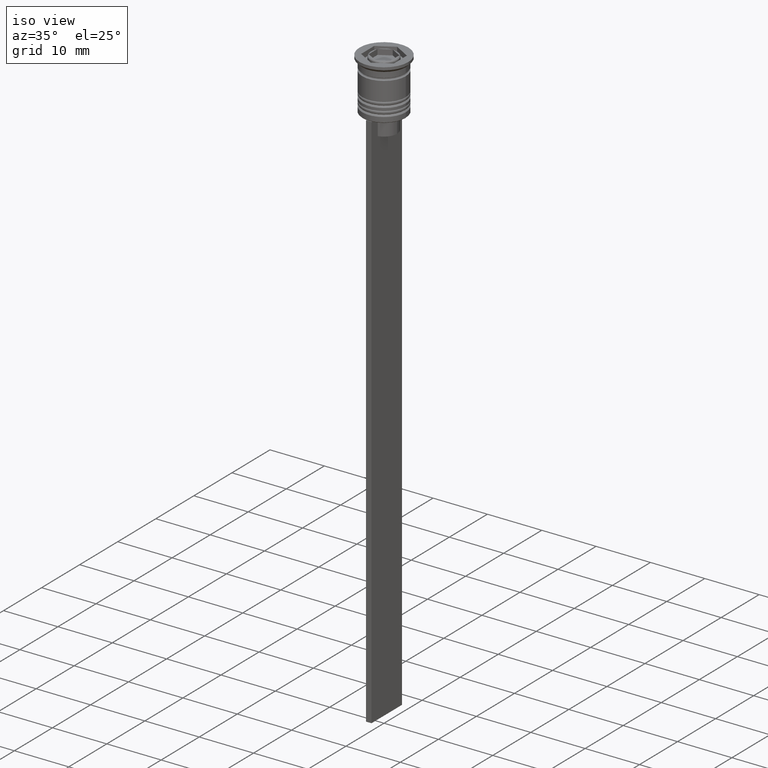
[diagram: clean part render]
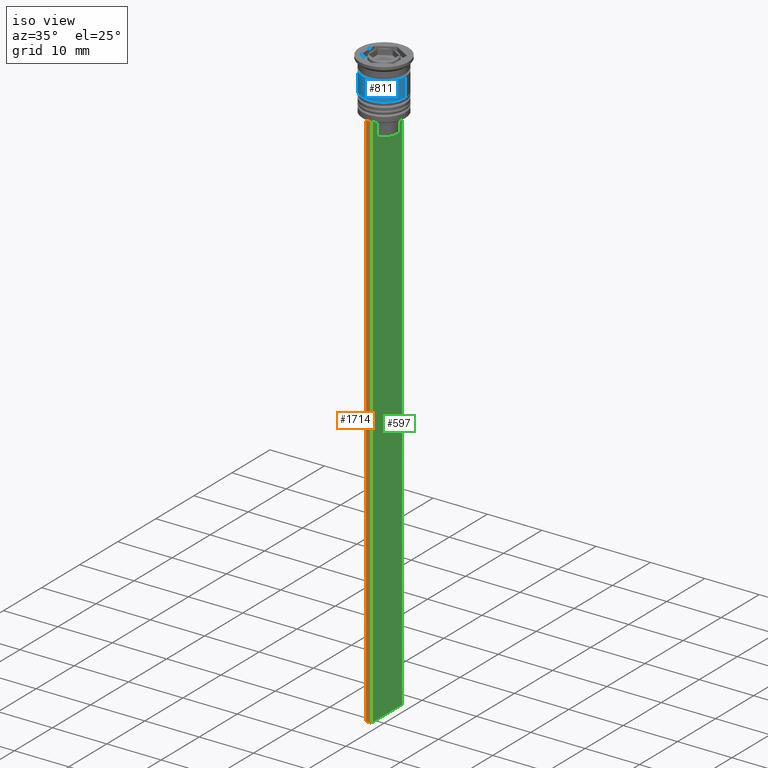
[diagram: same view with three faces highlighted in distinct colors, each labeled with its STEP entity id]
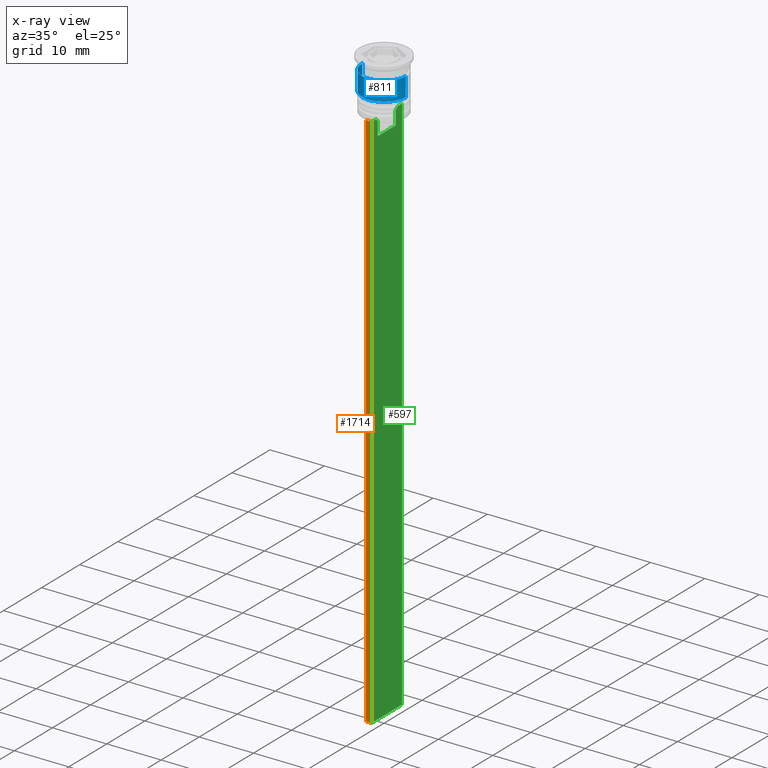
[diagram: x-ray of the same camera — body ghosted, the three highlighted faces saturated]
A machine part, iso view with three faces highlighted in distinct colors.
The next image is the same camera in x-ray (body ghosted, the three faces saturated) — at least one of them is partly hidden behind the body in this view.
Their STEP definitions:

[orange] entity #1714 — the highlighted planar face has unit normal (0, -1, -0).
#121 = FACE_OUTER_BOUND ( 'NONE', #1044, .T. ) ;
#168 = DIRECTION ( 'NONE',  ( -1.000000000000000000, 0.000000000000000000, 0.000000000000000000 ) ) ;
#182 = VERTEX_POINT ( 'NONE', #1082 ) ;
#190 = ORIENTED_EDGE ( 'NONE', *, *, #485, .F. ) ;
#485 = EDGE_CURVE ( 'NONE', #182, #1724, #1060, .T. ) ;
#613 = VERTEX_POINT ( 'NONE', #1109 ) ;
#645 = EDGE_CURVE ( 'NONE', #1724, #613, #2286, .T. ) ;
#683 = AXIS2_PLACEMENT_3D ( 'NONE', #1304, #905, #1686 ) ;
#707 = VECTOR ( 'NONE', #1720, 1000.000000000000000 ) ;
#905 = DIRECTION ( 'NONE',  ( 0.000000000000000000, -1.000000000000000000, -0.000000000000000000 ) ) ;
#1044 = EDGE_LOOP ( 'NONE', ( #190, #1547, #1722, #2381 ) ) ;
#1060 = LINE ( 'NONE', #1215, #1830 ) ;
#1081 = VECTOR ( 'NONE', #1276, 1000.000000000000000 ) ;
#1082 = CARTESIAN_POINT ( 'NONE',  ( -0.5000000000000000000, -4.000000000000000000, -9.500000000000000000 ) ) ;
#1109 = CARTESIAN_POINT ( 'NONE',  ( 0.5000000000000000000, -4.000000000000000000, -109.5000000000000000 ) ) ;
#1215 = CARTESIAN_POINT ( 'NONE',  ( 0.5000000000000000000, -4.000000000000000000, -9.500000000000000000 ) ) ;
#1276 = DIRECTION ( 'NONE',  ( 0.000000000000000000, 0.000000000000000000, -1.000000000000000000 ) ) ;
#1304 = CARTESIAN_POINT ( 'NONE',  ( 0.5000000000000000000, -4.000000000000000000, -1.437742251701450202 ) ) ;
#1314 = CARTESIAN_POINT ( 'NONE',  ( 0.5000000000000000000, -4.000000000000000000, -1.437742251701450202 ) ) ;
#1320 = CARTESIAN_POINT ( 'NONE',  ( 0.5000000000000000000, -4.000000000000000000, -109.5000000000000000 ) ) ;
#1412 = EDGE_CURVE ( 'NONE', #613, #2251, #1717, .T. ) ;
#1514 = LINE ( 'NONE', #2086, #707 ) ;
#1547 = ORIENTED_EDGE ( 'NONE', *, *, #2205, .T. ) ;
#1615 = DIRECTION ( 'NONE',  ( 1.000000000000000000, 0.000000000000000000, 0.000000000000000000 ) ) ;
#1686 = DIRECTION ( 'NONE',  ( 0.000000000000000000, 0.000000000000000000, -1.000000000000000000 ) ) ;
#1701 = VECTOR ( 'NONE', #168, 1000.000000000000000 ) ;
#1714 = ADVANCED_FACE ( 'NONE', ( #121 ), #2079, .T. ) ;
#1717 = LINE ( 'NONE', #1320, #1701 ) ;
#1720 = DIRECTION ( 'NONE',  ( 0.000000000000000000, 0.000000000000000000, -1.000000000000000000 ) ) ;
#1722 = ORIENTED_EDGE ( 'NONE', *, *, #1412, .F. ) ;
#1724 = VERTEX_POINT ( 'NONE', #2481 ) ;
#1830 = VECTOR ( 'NONE', #1615, 1000.000000000000000 ) ;
#2079 = PLANE ( 'NONE',  #683 ) ;
#2086 = CARTESIAN_POINT ( 'NONE',  ( -0.5000000000000000000, -4.000000000000000000, -1.437742251701450202 ) ) ;
#2205 = EDGE_CURVE ( 'NONE', #182, #2251, #1514, .T. ) ;
#2251 = VERTEX_POINT ( 'NONE', #2519 ) ;
#2286 = LINE ( 'NONE', #1314, #1081 ) ;
#2381 = ORIENTED_EDGE ( 'NONE', *, *, #645, .F. ) ;
#2481 = CARTESIAN_POINT ( 'NONE',  ( 0.5000000000000000000, -4.000000000000000000, -9.500000000000000000 ) ) ;
#2519 = CARTESIAN_POINT ( 'NONE',  ( -0.5000000000000000000, -4.000000000000000000, -109.5000000000000000 ) ) ;

[blue] entity #811 — the highlighted cylindrical surface (edge-blend (fillet) strip) has radius 4 mm, axis along (-0, -0, 1).
#45 = ORIENTED_EDGE ( 'NONE', *, *, #1825, .F. ) ;
#109 = DIRECTION ( 'NONE',  ( 1.000000000000000000, 0.000000000000000000, 0.000000000000000000 ) ) ;
#116 = LINE ( 'NONE', #680, #477 ) ;
#263 = DIRECTION ( 'NONE',  ( -0.000000000000000000, -0.000000000000000000, 1.000000000000000000 ) ) ;
#319 = CIRCLE ( 'NONE', #478, 4.000000000000000888 ) ;
#327 = CARTESIAN_POINT ( 'NONE',  ( 4.000000000000000888, 0.000000000000000000, -6.000000000000000000 ) ) ;
#412 = CARTESIAN_POINT ( 'NONE',  ( 0.000000000000000000, 0.000000000000000000, 0.000000000000000000 ) ) ;
#477 = VECTOR ( 'NONE', #2292, 1000.000000000000000 ) ;
#478 = AXIS2_PLACEMENT_3D ( 'NONE', #2052, #2063, #109 ) ;
#487 = DIRECTION ( 'NONE',  ( 1.000000000000000000, 0.000000000000000000, 0.000000000000000000 ) ) ;
#519 = ORIENTED_EDGE ( 'NONE', *, *, #1884, .T. ) ;
#523 = CARTESIAN_POINT ( 'NONE',  ( 0.000000000000000000, 0.000000000000000000, -2.500000000000000000 ) ) ;
#548 = ORIENTED_EDGE ( 'NONE', *, *, #565, .T. ) ;
#565 = EDGE_CURVE ( 'NONE', #1574, #577, #319, .T. ) ;
#577 = VERTEX_POINT ( 'NONE', #327 ) ;
#578 = FACE_OUTER_BOUND ( 'NONE', #1003, .T. ) ;
#677 = DIRECTION ( 'NONE',  ( -0.000000000000000000, -0.000000000000000000, 1.000000000000000000 ) ) ;
#680 = CARTESIAN_POINT ( 'NONE',  ( -4.000000000000000000, 4.898587196589412829E-16, 0.000000000000000000 ) ) ;
#811 = ADVANCED_FACE ( 'NONE', ( #578 ), #2172, .T. ) ;
#1002 = DIRECTION ( 'NONE',  ( -0.000000000000000000, -0.000000000000000000, 1.000000000000000000 ) ) ;
#1003 = EDGE_LOOP ( 'NONE', ( #45, #548, #519, #1997 ) ) ;
#1004 = CARTESIAN_POINT ( 'NONE',  ( -4.000000000000000888, 4.898587196589413815E-16, -6.000000000000000000 ) ) ;
#1100 = CARTESIAN_POINT ( 'NONE',  ( 4.000000000000000000, 0.000000000000000000, -2.500000000000000000 ) ) ;
#1283 = EDGE_CURVE ( 'NONE', #1451, #1702, #1419, .T. ) ;
#1284 = VECTOR ( 'NONE', #263, 1000.000000000000000 ) ;
#1419 = CIRCLE ( 'NONE', #2479, 4.000000000000000000 ) ;
#1451 = VERTEX_POINT ( 'NONE', #1540 ) ;
#1475 = LINE ( 'NONE', #2004, #1284 ) ;
#1540 = CARTESIAN_POINT ( 'NONE',  ( -4.000000000000000000, 4.898587196589412829E-16, -2.500000000000000000 ) ) ;
#1574 = VERTEX_POINT ( 'NONE', #1004 ) ;
#1702 = VERTEX_POINT ( 'NONE', #1100 ) ;
#1735 = AXIS2_PLACEMENT_3D ( 'NONE', #412, #1002, #2317 ) ;
#1825 = EDGE_CURVE ( 'NONE', #1574, #1451, #116, .T. ) ;
#1884 = EDGE_CURVE ( 'NONE', #577, #1702, #1475, .T. ) ;
#1997 = ORIENTED_EDGE ( 'NONE', *, *, #1283, .F. ) ;
#2004 = CARTESIAN_POINT ( 'NONE',  ( 4.000000000000000000, 0.000000000000000000, 0.000000000000000000 ) ) ;
#2052 = CARTESIAN_POINT ( 'NONE',  ( 0.000000000000000000, 0.000000000000000000, -6.000000000000000000 ) ) ;
#2063 = DIRECTION ( 'NONE',  ( -0.000000000000000000, -0.000000000000000000, 1.000000000000000000 ) ) ;
#2172 = CYLINDRICAL_SURFACE ( 'NONE', #1735, 4.000000000000000000 ) ;
#2292 = DIRECTION ( 'NONE',  ( -0.000000000000000000, -0.000000000000000000, 1.000000000000000000 ) ) ;
#2317 = DIRECTION ( 'NONE',  ( 1.000000000000000000, 0.000000000000000000, 0.000000000000000000 ) ) ;
#2479 = AXIS2_PLACEMENT_3D ( 'NONE', #523, #677, #487 ) ;

[green] entity #597 — the highlighted planar face has unit normal (-1, 0, 0).
#22 = VERTEX_POINT ( 'NONE', #433 ) ;
#29 = VECTOR ( 'NONE', #1049, 1000.000000000000000 ) ;
#66 = VERTEX_POINT ( 'NONE', #2462 ) ;
#128 = DIRECTION ( 'NONE',  ( 0.000000000000000000, 1.000000000000000000, 0.000000000000000000 ) ) ;
#151 = CARTESIAN_POINT ( 'NONE',  ( 0.5000000000000000000, -2.856571371417138572, -9.500000000000000000 ) ) ;
#164 = EDGE_CURVE ( 'NONE', #2312, #797, #1474, .T. ) ;
#172 = ORIENTED_EDGE ( 'NONE', *, *, #1526, .T. ) ;
#200 = VECTOR ( 'NONE', #1794, 1000.000000000000000 ) ;
#208 = CARTESIAN_POINT ( 'NONE',  ( 0.5000000000000000000, 4.000000000000000000, -109.5000000000000000 ) ) ;
#229 = CARTESIAN_POINT ( 'NONE',  ( 0.5000000000000000000, 2.347338918861097135, -10.00000000000000000 ) ) ;
#255 = CARTESIAN_POINT ( 'NONE',  ( 0.5000000000000000000, 2.687094542495898075, -9.666938847453439010 ) ) ;
#294 = VERTEX_POINT ( 'NONE', #551 ) ;
#311 = LINE ( 'NONE', #1299, #564 ) ;
#315 = CARTESIAN_POINT ( 'NONE',  ( 0.5000000000000000000, -4.000000000000000000, -1.437742251701450202 ) ) ;
#337 = CARTESIAN_POINT ( 'NONE',  ( 0.5000000000000000000, 2.347338918861097135, -12.50000000000000000 ) ) ;
#360 = DIRECTION ( 'NONE',  ( 0.000000000000000000, 0.000000000000000000, -1.000000000000000000 ) ) ;
#373 = VERTEX_POINT ( 'NONE', #980 ) ;
#374 = CARTESIAN_POINT ( 'NONE',  ( 0.5000000000000000000, -2.517408374291112416, -9.833662228483172285 ) ) ;
#425 = CARTESIAN_POINT ( 'NONE',  ( 0.5000000000000000000, 2.856571371417138572, -9.500000000000000000 ) ) ;
#433 = CARTESIAN_POINT ( 'NONE',  ( 0.5000000000000000000, 4.000000000000000000, -9.500000000000000000 ) ) ;
#471 = CARTESIAN_POINT ( 'NONE',  ( 0.5000000000000000000, -3.867815921162741422, -9.500000000000000000 ) ) ;
#480 = DIRECTION ( 'NONE',  ( -1.000000000000000000, 0.000000000000000000, 0.000000000000000000 ) ) ;
#545 = ORIENTED_EDGE ( 'NONE', *, *, #2504, .T. ) ;
#551 = CARTESIAN_POINT ( 'NONE',  ( 0.5000000000000000000, -2.347338918861097135, -10.00000000000000000 ) ) ;
#564 = VECTOR ( 'NONE', #1093, 1000.000000000000000 ) ;
#572 = B_SPLINE_CURVE_WITH_KNOTS ( 'NONE', 3,
 ( #2150, #374, #1567, #151 ),
 .UNSPECIFIED., .F., .F.,
 ( 4, 4 ),
 ( 0.01178336557230038467, 0.01249758354768160280 ),
 .UNSPECIFIED. ) ;
#597 = ADVANCED_FACE ( 'NONE', ( #712 ), #1072, .F. ) ;
#613 = VERTEX_POINT ( 'NONE', #1109 ) ;
#620 = B_SPLINE_CURVE_WITH_KNOTS ( 'NONE', 3,
 ( #425, #255, #1039, #229 ),
 .UNSPECIFIED., .F., .F.,
 ( 4, 4 ),
 ( 0.004956812174141191595, 0.005670477137898149653 ),
 .UNSPECIFIED. ) ;
#635 = ORIENTED_EDGE ( 'NONE', *, *, #164, .T. ) ;
#638 = VERTEX_POINT ( 'NONE', #1697 ) ;
#645 = EDGE_CURVE ( 'NONE', #1724, #613, #2286, .T. ) ;
#705 = LINE ( 'NONE', #738, #817 ) ;
#712 = FACE_OUTER_BOUND ( 'NONE', #1876, .T. ) ;
#738 = CARTESIAN_POINT ( 'NONE',  ( 0.5000000000000000000, -4.000000000000000000, -109.5000000000000000 ) ) ;
#777 = CARTESIAN_POINT ( 'NONE',  ( 0.5000000000000000000, 4.000000000000000000, -1.437742251701450202 ) ) ;
#797 = VERTEX_POINT ( 'NONE', #1192 ) ;
#817 = VECTOR ( 'NONE', #128, 1000.000000000000000 ) ;
#868 = CARTESIAN_POINT ( 'NONE',  ( 0.5000000000000000000, -4.000000000000000000, -9.500000000000000000 ) ) ;
#910 = ORIENTED_EDGE ( 'NONE', *, *, #2246, .T. ) ;
#925 = ORIENTED_EDGE ( 'NONE', *, *, #1430, .F. ) ;
#936 = VECTOR ( 'NONE', #1435, 1000.000000000000000 ) ;
#980 = CARTESIAN_POINT ( 'NONE',  ( 0.5000000000000000000, 2.347338918861097135, -10.00000000000000000 ) ) ;
#985 = VERTEX_POINT ( 'NONE', #208 ) ;
#1039 = CARTESIAN_POINT ( 'NONE',  ( 0.5000000000000000000, 2.517407211010872281, -9.833663366238582171 ) ) ;
#1049 = DIRECTION ( 'NONE',  ( 0.000000000000000000, -1.000000000000000000, 0.000000000000000000 ) ) ;
#1061 = LINE ( 'NONE', #868, #2367 ) ;
#1072 = PLANE ( 'NONE',  #2444 ) ;
#1081 = VECTOR ( 'NONE', #1276, 1000.000000000000000 ) ;
#1093 = DIRECTION ( 'NONE',  ( 0.000000000000000000, -1.000000000000000000, 0.000000000000000000 ) ) ;
#1109 = CARTESIAN_POINT ( 'NONE',  ( 0.5000000000000000000, -4.000000000000000000, -109.5000000000000000 ) ) ;
#1162 = ORIENTED_EDGE ( 'NONE', *, *, #1517, .T. ) ;
#1192 = CARTESIAN_POINT ( 'NONE',  ( 0.5000000000000000000, -2.347338918861097135, -12.50000000000000000 ) ) ;
#1276 = DIRECTION ( 'NONE',  ( 0.000000000000000000, 0.000000000000000000, -1.000000000000000000 ) ) ;
#1277 = DIRECTION ( 'NONE',  ( 0.000000000000000000, -1.000000000000000000, 0.000000000000000000 ) ) ;
#1291 = DIRECTION ( 'NONE',  ( 0.000000000000000000, 0.000000000000000000, 1.000000000000000000 ) ) ;
#1299 = CARTESIAN_POINT ( 'NONE',  ( 0.5000000000000000000, -4.000000000000000000, -9.500000000000000000 ) ) ;
#1314 = CARTESIAN_POINT ( 'NONE',  ( 0.5000000000000000000, -4.000000000000000000, -1.437742251701450202 ) ) ;
#1315 = VECTOR ( 'NONE', #2496, 1000.000000000000000 ) ;
#1327 = LINE ( 'NONE', #1559, #2048 ) ;
#1333 = VERTEX_POINT ( 'NONE', #2266 ) ;
#1358 = EDGE_CURVE ( 'NONE', #294, #66, #572, .T. ) ;
#1372 = ORIENTED_EDGE ( 'NONE', *, *, #1740, .T. ) ;
#1398 = ORIENTED_EDGE ( 'NONE', *, *, #645, .T. ) ;
#1420 = ORIENTED_EDGE ( 'NONE', *, *, #1781, .T. ) ;
#1430 = EDGE_CURVE ( 'NONE', #22, #985, #2306, .T. ) ;
#1431 = CARTESIAN_POINT ( 'NONE',  ( 0.5000000000000000000, -4.000000000000000000, -9.500000000000000000 ) ) ;
#1435 = DIRECTION ( 'NONE',  ( 0.000000000000000000, -1.000000000000000000, 0.000000000000000000 ) ) ;
#1474 = LINE ( 'NONE', #1680, #936 ) ;
#1517 = EDGE_CURVE ( 'NONE', #373, #2312, #1638, .T. ) ;
#1526 = EDGE_CURVE ( 'NONE', #1333, #638, #1616, .T. ) ;
#1559 = CARTESIAN_POINT ( 'NONE',  ( 0.5000000000000000000, -2.347338918861097135, 0.000000000000000000 ) ) ;
#1567 = CARTESIAN_POINT ( 'NONE',  ( 0.5000000000000000000, -2.687095498514037839, -9.666937905752043037 ) ) ;
#1599 = EDGE_CURVE ( 'NONE', #638, #373, #620, .T. ) ;
#1613 = VERTEX_POINT ( 'NONE', #471 ) ;
#1616 = LINE ( 'NONE', #1431, #29 ) ;
#1633 = ORIENTED_EDGE ( 'NONE', *, *, #1683, .T. ) ;
#1638 = LINE ( 'NONE', #1998, #200 ) ;
#1680 = CARTESIAN_POINT ( 'NONE',  ( 0.5000000000000000000, 2.399999999999996803, -12.50000000000000000 ) ) ;
#1683 = EDGE_CURVE ( 'NONE', #66, #1613, #1061, .T. ) ;
#1697 = CARTESIAN_POINT ( 'NONE',  ( 0.5000000000000000000, 2.856571371417138572, -9.500000000000000000 ) ) ;
#1713 = LINE ( 'NONE', #2456, #1315 ) ;
#1724 = VERTEX_POINT ( 'NONE', #2481 ) ;
#1740 = EDGE_CURVE ( 'NONE', #613, #985, #705, .T. ) ;
#1762 = ORIENTED_EDGE ( 'NONE', *, *, #1599, .T. ) ;
#1781 = EDGE_CURVE ( 'NONE', #1613, #1724, #311, .T. ) ;
#1794 = DIRECTION ( 'NONE',  ( 0.000000000000000000, 0.000000000000000000, -1.000000000000000000 ) ) ;
#1876 = EDGE_LOOP ( 'NONE', ( #172, #1762, #1162, #635, #910, #2107, #1633, #1420, #1398, #1372, #925, #545 ) ) ;
#1901 = VECTOR ( 'NONE', #360, 1000.000000000000000 ) ;
#1998 = CARTESIAN_POINT ( 'NONE',  ( 0.5000000000000000000, 2.347338918861097135, 0.000000000000000000 ) ) ;
#2048 = VECTOR ( 'NONE', #2101, 1000.000000000000000 ) ;
#2101 = DIRECTION ( 'NONE',  ( -0.000000000000000000, -0.000000000000000000, 1.000000000000000000 ) ) ;
#2107 = ORIENTED_EDGE ( 'NONE', *, *, #1358, .T. ) ;
#2150 = CARTESIAN_POINT ( 'NONE',  ( 0.5000000000000000000, -2.347338918861097135, -10.00000000000000000 ) ) ;
#2246 = EDGE_CURVE ( 'NONE', #797, #294, #1327, .T. ) ;
#2266 = CARTESIAN_POINT ( 'NONE',  ( 0.5000000000000000000, 3.867815921162741422, -9.500000000000000000 ) ) ;
#2286 = LINE ( 'NONE', #1314, #1081 ) ;
#2306 = LINE ( 'NONE', #777, #1901 ) ;
#2312 = VERTEX_POINT ( 'NONE', #337 ) ;
#2367 = VECTOR ( 'NONE', #1277, 1000.000000000000000 ) ;
#2444 = AXIS2_PLACEMENT_3D ( 'NONE', #315, #480, #1291 ) ;
#2456 = CARTESIAN_POINT ( 'NONE',  ( 0.5000000000000000000, -4.000000000000000000, -9.500000000000000000 ) ) ;
#2462 = CARTESIAN_POINT ( 'NONE',  ( 0.5000000000000000000, -2.856571371417138572, -9.500000000000000000 ) ) ;
#2481 = CARTESIAN_POINT ( 'NONE',  ( 0.5000000000000000000, -4.000000000000000000, -9.500000000000000000 ) ) ;
#2496 = DIRECTION ( 'NONE',  ( 0.000000000000000000, -1.000000000000000000, 0.000000000000000000 ) ) ;
#2504 = EDGE_CURVE ( 'NONE', #22, #1333, #1713, .T. ) ;